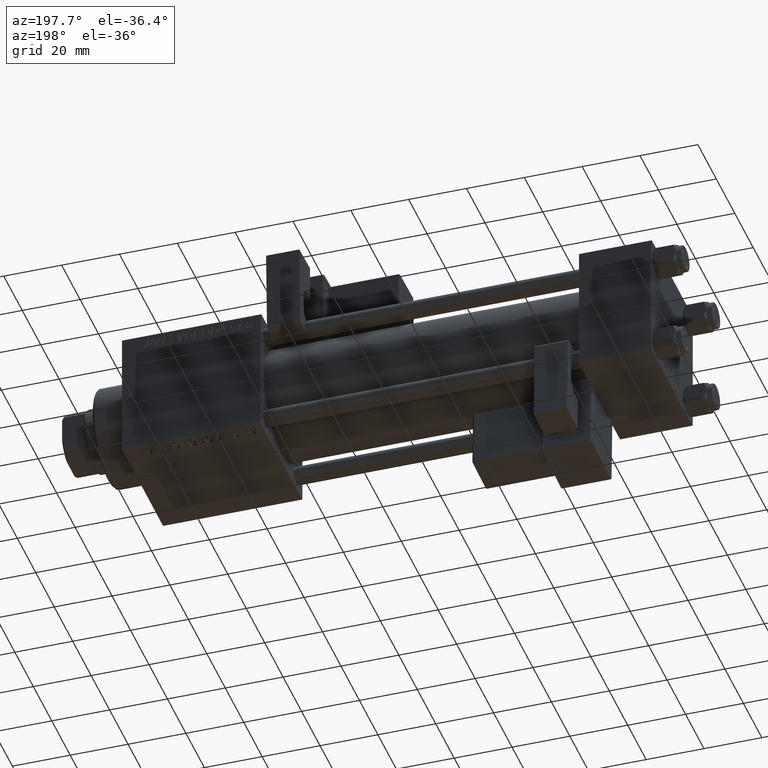
[diagram: clean part render]
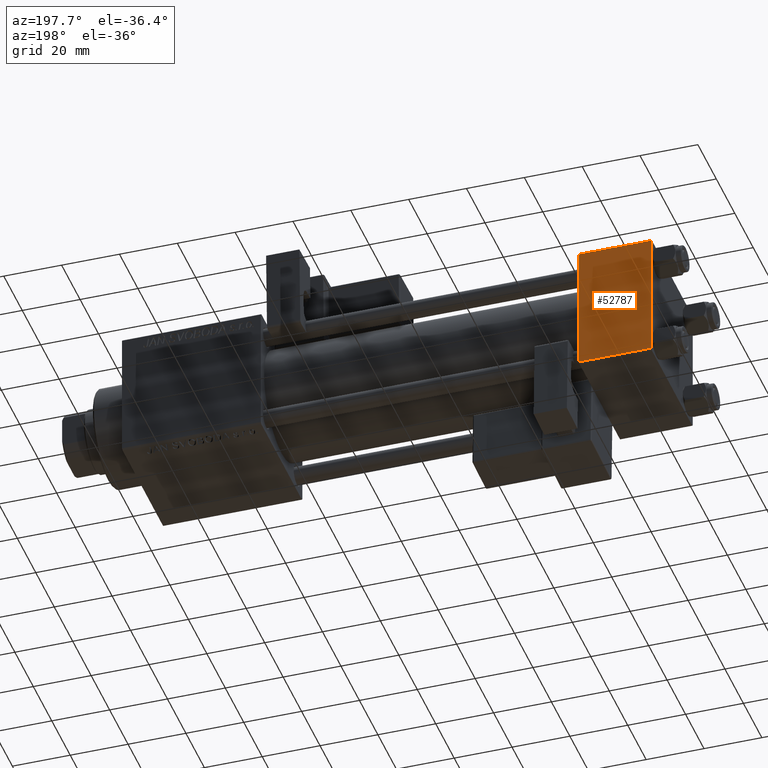
[diagram: same view with one face highlighted and labeled with its STEP entity id]
A machine part, auxiliary view. The second image highlights one B-rep face of the part: STEP entity #52787.
In plain terms, the highlighted planar face has unit normal (0, 1, 0).
Its self-contained STEP definition (entity closure, byte-faithful):
#1022 = CARTESIAN_POINT ( 'NONE',  ( 25.00000000000000000, 22.50000000000000000, 21.99999999999999645 ) ) ;
#1438 = VERTEX_POINT ( 'NONE', #25868 ) ;
#5399 = DIRECTION ( 'NONE',  ( 0.000000000000000000, 0.000000000000000000, -1.000000000000000000 ) ) ;
#6743 = EDGE_CURVE ( 'NONE', #22254, #18198, #20636, .T. ) ;
#8002 = ORIENTED_EDGE ( 'NONE', *, *, #24681, .F. ) ;
#8543 = AXIS2_PLACEMENT_3D ( 'NONE', #51674, #10654, #35658 ) ;
#10654 = DIRECTION ( 'NONE',  ( -0.000000000000000000, 1.000000000000000000, 0.000000000000000000 ) ) ;
#11031 = LINE ( 'NONE', #27602, #19769 ) ;
#13041 = LINE ( 'NONE', #46734, #17892 ) ;
#14668 = CARTESIAN_POINT ( 'NONE',  ( 25.00000000000000000, 22.50000000000000000, 22.50000000000000355 ) ) ;
#16049 = VECTOR ( 'NONE', #32039, 1000.000000000000000 ) ;
#16818 = DIRECTION ( 'NONE',  ( 1.000000000000000000, 0.000000000000000000, 0.000000000000000000 ) ) ;
#17892 = VECTOR ( 'NONE', #5399, 1000.000000000000000 ) ;
#18198 = VERTEX_POINT ( 'NONE', #44225 ) ;
#19086 = FACE_OUTER_BOUND ( 'NONE', #30862, .T. ) ;
#19769 = VECTOR ( 'NONE', #37890, 1000.000000000000000 ) ;
#20636 = LINE ( 'NONE', #1022, #31296 ) ;
#22254 = VERTEX_POINT ( 'NONE', #27356 ) ;
#22345 = PLANE ( 'NONE',  #8543 ) ;
#24681 = EDGE_CURVE ( 'NONE', #22254, #1438, #13041, .T. ) ;
#25868 = CARTESIAN_POINT ( 'NONE',  ( 0.000000000000000000, 22.50000000000000000, -21.99999999999996803 ) ) ;
#26058 = ORIENTED_EDGE ( 'NONE', *, *, #48200, .T. ) ;
#27356 = CARTESIAN_POINT ( 'NONE',  ( 0.000000000000000000, 22.50000000000000000, 21.99999999999999645 ) ) ;
#27602 = CARTESIAN_POINT ( 'NONE',  ( 25.00000000000000000, 22.50000000000000000, -21.99999999999998224 ) ) ;
#29064 = ORIENTED_EDGE ( 'NONE', *, *, #6743, .T. ) ;
#30862 = EDGE_LOOP ( 'NONE', ( #50643, #26058, #8002, #29064 ) ) ;
#31296 = VECTOR ( 'NONE', #16818, 1000.000000000000000 ) ;
#32039 = DIRECTION ( 'NONE',  ( 0.000000000000000000, 0.000000000000000000, -1.000000000000000000 ) ) ;
#32755 = VERTEX_POINT ( 'NONE', #50002 ) ;
#35658 = DIRECTION ( 'NONE',  ( 0.000000000000000000, -0.000000000000000000, 1.000000000000000000 ) ) ;
#37890 = DIRECTION ( 'NONE',  ( -1.000000000000000000, 0.000000000000000000, 0.000000000000000000 ) ) ;
#40970 = EDGE_CURVE ( 'NONE', #18198, #32755, #48876, .T. ) ;
#44225 = CARTESIAN_POINT ( 'NONE',  ( 25.00000000000000000, 22.50000000000000000, 21.99999999999999645 ) ) ;
#46734 = CARTESIAN_POINT ( 'NONE',  ( 0.000000000000000000, 22.50000000000000000, 22.50000000000000355 ) ) ;
#48200 = EDGE_CURVE ( 'NONE', #32755, #1438, #11031, .T. ) ;
#48876 = LINE ( 'NONE', #14668, #16049 ) ;
#50002 = CARTESIAN_POINT ( 'NONE',  ( 25.00000000000000000, 22.50000000000000000, -21.99999999999996803 ) ) ;
#50643 = ORIENTED_EDGE ( 'NONE', *, *, #40970, .T. ) ;
#51674 = CARTESIAN_POINT ( 'NONE',  ( 25.00000000000000000, 22.50000000000000000, 22.50000000000000355 ) ) ;
#52787 = ADVANCED_FACE ( 'NONE', ( #19086 ), #22345, .T. ) ;